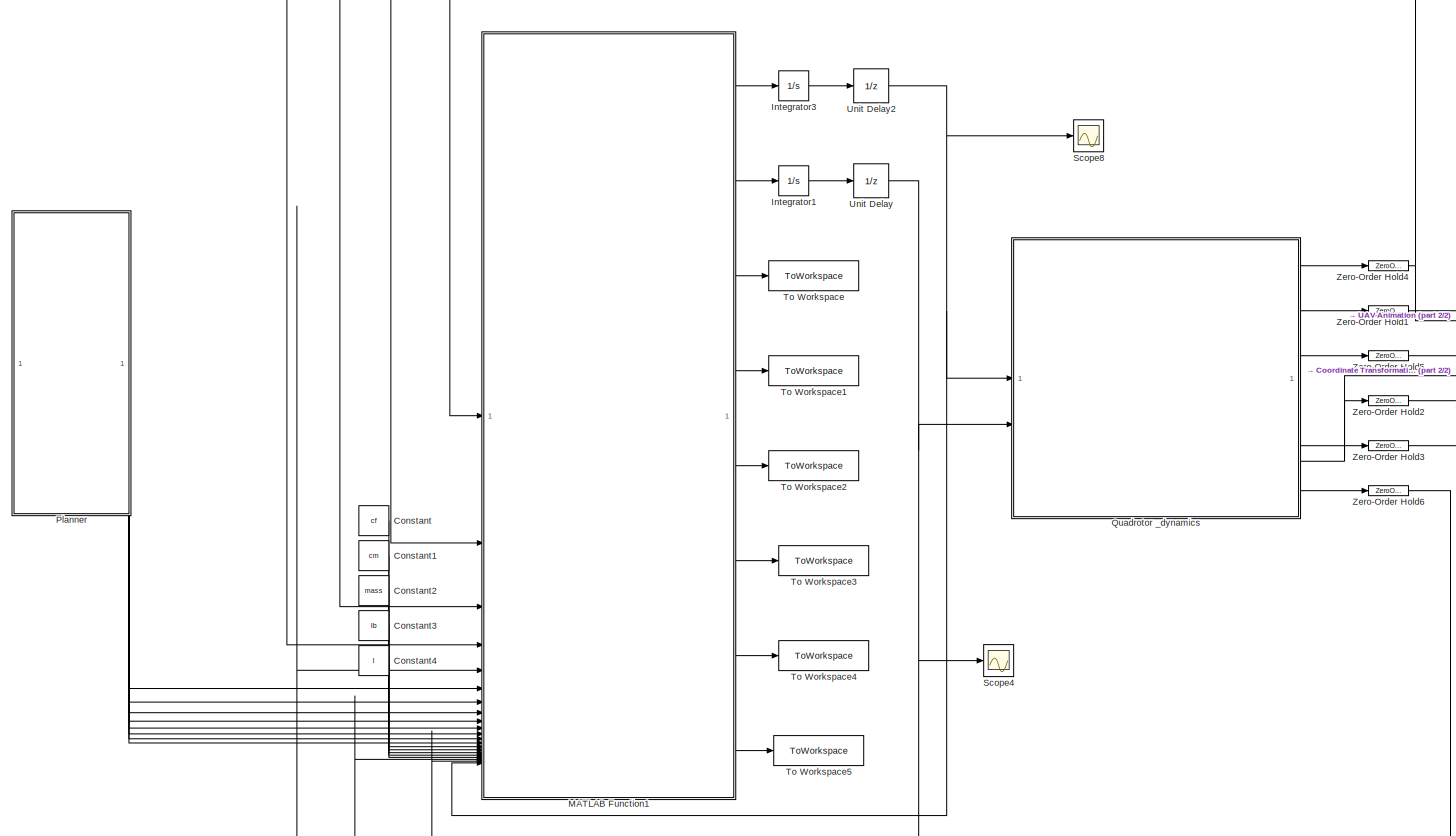
[diagram: root canvas - part 1/2, most of the canvas]
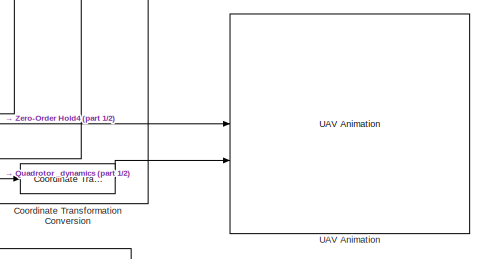
[diagram: root canvas - part 2/2, middle right region]
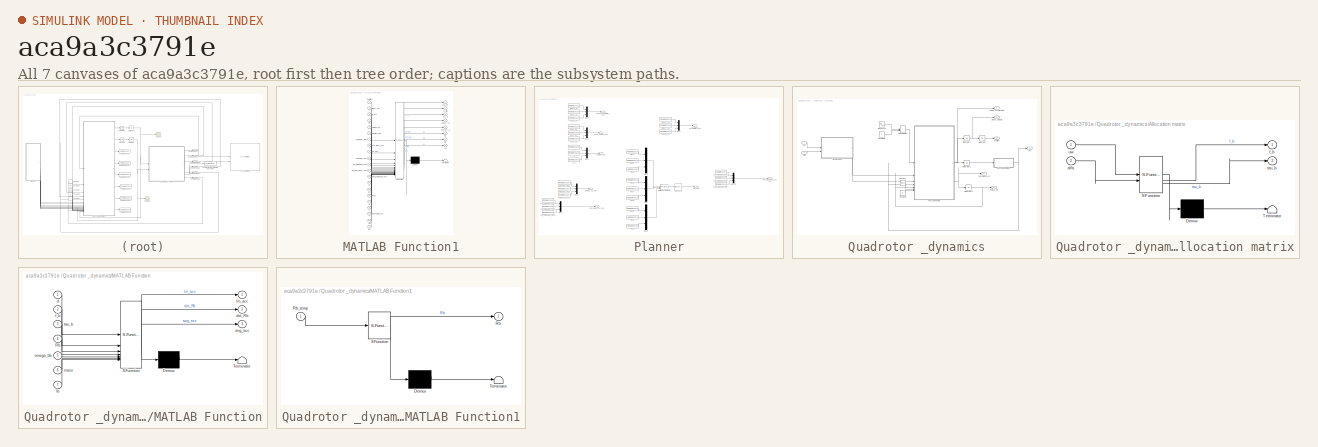
[diagram: thumbnail index - all 7 canvases of the model, root first then tree order]
MODEL slx_aca9a3c3791e
KIND model
CONFIG AbsTol = auto
CONFIG EnableMultiTasking = off
CONFIG FixedStep = auto
CONFIG InitFcn = addpath('TRAJECTORIES\');\nsquare_tilting\n%circular_tilting
CONFIG MaxStep = auto
CONFIG MinStep = auto
CONFIG RelTol = 1e-3
CONFIG SampleTimeConstraint = Unconstrained
CONFIG SolverName = VariableStepAuto
CONFIG StartFcn = %% Setup Video e Timer\nvideoFile = 'Holocopter_quad.avi';\n%videoFile = 'Holocopter_circ.avi';\nvideoObj = VideoWriter(videoFile);\nvideoObj.FrameRate = 30;\nopen(videoObj);\nassignin('base','videoObj',videoObj);\n \n \nt = timer('ExecutionMode','fixedSpacing','Period',0.05,'StartDelay',2,...\n          'TimerFcn',@(~,~) captureFrame(findall(0,'Type','figure','Name','UAV Animation'), videoObj));\nstart(t);\n...<+36ch>
CONFIG StartTime = 0.0
CONFIG StopFcn = % Default graphics settings\nset(0, 'DefaultTextInterpreter', 'latex')\nset(0, 'DefaultLegendInterpreter', 'latex')\nset(0, 'DefaultAxesTickLabelInterpreter', 'latex')\nlw = 2;\nplot_errors = figure('Renderer', 'painters', 'Position', [10 10 900 650]);    \nsubplot(3,1,1)\nplot(out.err_p.time, out.err_p.signals.values(1,:), 'k-', 'Linewidth', lw ,'Color', [0.2, 0.2, 0.2]);\nhold on\nplot(out.err_p.time, ou...<+4012ch>
CONFIG StopTime = tot_time
BLOCK [Constant] Constant
  Value = cf
BLOCK [Constant] Constant1
  Value = cm
BLOCK [Constant] Constant2
  Value = mass
BLOCK [Constant] Constant3
  Value = Ib
BLOCK [Constant] Constant4
  Value = l
BLOCK [Reference] Coordinate Transformation Conversion  REF=robotcorelib/Coordinate Transformation Conversion
  SourceBlock = robotcorelib/Coordinate Transformation Conversion
  SourceType = robotics.slcore.internal.block.CoordinateTransformationConversion
BLOCK [Integrator] Integrator1
  InitialCondition = [0.1 0.1 0.1 0.1]'
BLOCK [Integrator] Integrator3
  InitialCondition = 2e+05*ones(4,1)
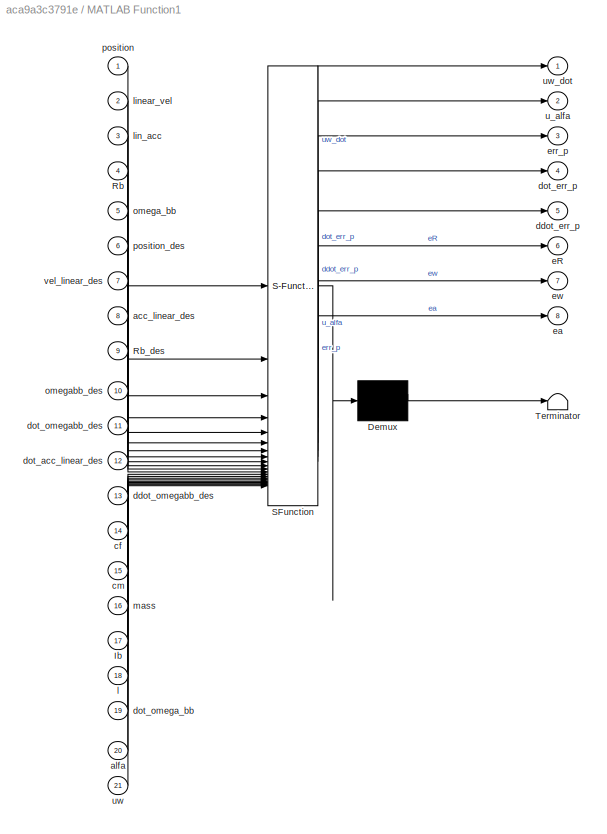
BLOCK [SubSystem] MATLAB Function1
  ErrorFcn = Stateflow.Translate.translate
  PermitHierarchicalResolution = ExplicitOnly
  SFBlockType = MATLAB Function
  TreatAsAtomicUnit = on
BLOCK [Demux] MATLAB Function1/ Demux 
  Outputs = 1
BLOCK [S-Function] MATLAB Function1/ SFunction 
  EnableBusSupport = on
  FunctionName = sf_sfun
  PortCounts = [21 9]
  SFcnIsStateOwnerBlock = off
  SFunctionDeploymentMode = off
  Tag = Stateflow S-Function 4
BLOCK [Terminator] MATLAB Function1/ Terminator 
BLOCK [Inport] MATLAB Function1/Ib
  Port = 17
BLOCK [Inport] MATLAB Function1/Rb
  Port = 4
BLOCK [Inport] MATLAB Function1/Rb_des
  Port = 9
BLOCK [Inport] MATLAB Function1/acc_linear_des
  Port = 8
BLOCK [Inport] MATLAB Function1/alfa
  Port = 20
BLOCK [Inport] MATLAB Function1/cf
  Port = 14
BLOCK [Inport] MATLAB Function1/cm
  Port = 15
BLOCK [Outport] MATLAB Function1/ddot_err_p
  Port = 5
BLOCK [Inport] MATLAB Function1/ddot_omegabb_des
  Port = 13
BLOCK [Inport] MATLAB Function1/dot_acc_linear_des
  Port = 12
BLOCK [Outport] MATLAB Function1/dot_err_p
  Port = 4
BLOCK [Inport] MATLAB Function1/dot_omega_bb
  Port = 19
BLOCK [Inport] MATLAB Function1/dot_omegabb_des
  Port = 11
BLOCK [Outport] MATLAB Function1/eR
  Port = 6
BLOCK [Outport] MATLAB Function1/ea
  Port = 8
BLOCK [Outport] MATLAB Function1/err_p
  Port = 3
BLOCK [Outport] MATLAB Function1/ew
  Port = 7
BLOCK [Inport] MATLAB Function1/l
  Port = 18
BLOCK [Inport] MATLAB Function1/lin_acc
  Port = 3
BLOCK [Inport] MATLAB Function1/linear_vel
  Port = 2
BLOCK [Inport] MATLAB Function1/mass
  Port = 16
BLOCK [Inport] MATLAB Function1/omega_bb
  Port = 5
BLOCK [Inport] MATLAB Function1/omegabb_des
  Port = 10
BLOCK [Inport] MATLAB Function1/position
BLOCK [Inport] MATLAB Function1/position_des
  Port = 6
BLOCK [Outport] MATLAB Function1/u_alfa
  Port = 2
BLOCK [Inport] MATLAB Function1/uw
  Port = 21
BLOCK [Outport] MATLAB Function1/uw_dot
BLOCK [Inport] MATLAB Function1/vel_linear_des
  Port = 7
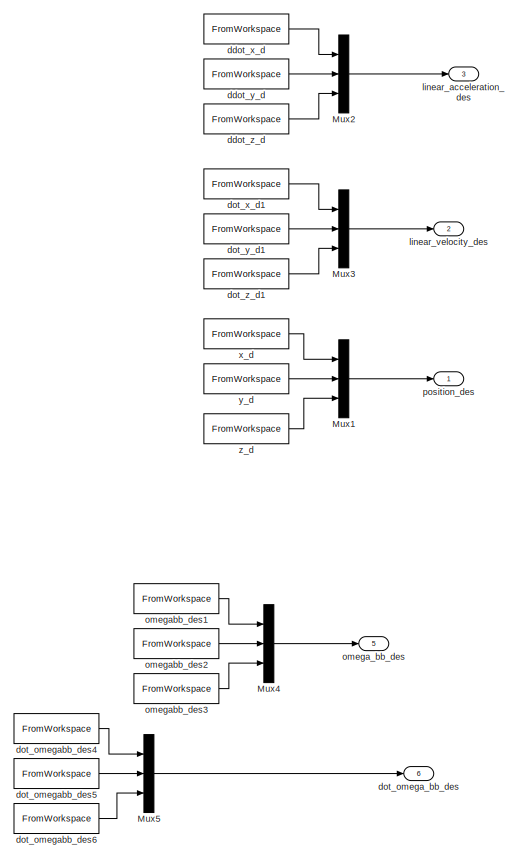
[diagram: Planner - part 1/2, left side, full height]
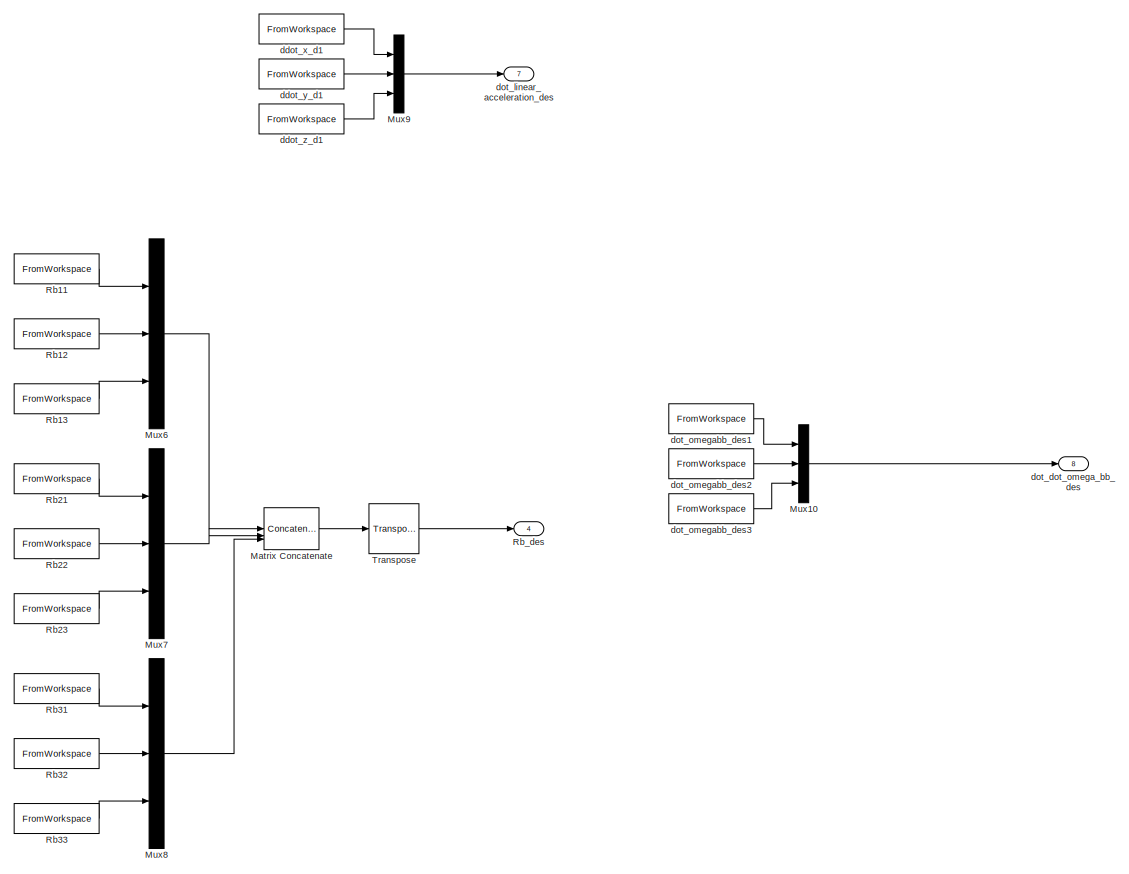
[diagram: Planner - part 2/2, right side, full height]
BLOCK [SubSystem] Planner
BLOCK [Concatenate] Planner/Matrix Concatenate
  ConcatenateDimension = 2
  Mode = Multidimensional array
  NumInputs = 3
BLOCK [Mux] Planner/Mux1
  DisplayOption = bar
  Inputs = 3
BLOCK [Mux] Planner/Mux10
  DisplayOption = bar
  Inputs = 3
BLOCK [Mux] Planner/Mux2
  DisplayOption = bar
  Inputs = 3
BLOCK [Mux] Planner/Mux3
  DisplayOption = bar
  Inputs = 3
BLOCK [Mux] Planner/Mux4
  DisplayOption = bar
  Inputs = 3
BLOCK [Mux] Planner/Mux5
  DisplayOption = bar
  Inputs = 3
BLOCK [Mux] Planner/Mux6
  DisplayOption = bar
  Inputs = 3
BLOCK [Mux] Planner/Mux7
  DisplayOption = bar
  Inputs = 3
BLOCK [Mux] Planner/Mux8
  DisplayOption = bar
  Inputs = 3
BLOCK [Mux] Planner/Mux9
  DisplayOption = bar
  Inputs = 3
BLOCK [FromWorkspace] Planner/Rb11
  SampleTime = Ts
  VariableName = [t' squeeze(Rbdes(1,1,:))]
BLOCK [FromWorkspace] Planner/Rb12
  SampleTime = Ts
  VariableName = [t' squeeze(Rbdes(1,2,:))]
BLOCK [FromWorkspace] Planner/Rb13
  SampleTime = Ts
  VariableName = [t' squeeze(Rbdes(1,3,:))]
BLOCK [FromWorkspace] Planner/Rb21
  SampleTime = Ts
  VariableName = [t' squeeze(Rbdes(2,1,:))]
BLOCK [FromWorkspace] Planner/Rb22
  SampleTime = Ts
  VariableName = [t' squeeze(Rbdes(2,2,:))]
BLOCK [FromWorkspace] Planner/Rb23
  SampleTime = Ts
  VariableName = [t' squeeze(Rbdes(2,3,:))]
BLOCK [FromWorkspace] Planner/Rb31
  SampleTime = Ts
  VariableName = [t' squeeze(Rbdes(3,1,:))]
BLOCK [FromWorkspace] Planner/Rb32
  SampleTime = Ts
  VariableName = [t' squeeze(Rbdes(3,2,:))]
BLOCK [FromWorkspace] Planner/Rb33
  SampleTime = Ts
  VariableName = [t' squeeze(Rbdes(3,3,:))]
BLOCK [Outport] Planner/Rb_des
  Port = 4
BLOCK [Reference] Planner/Transpose  REF=matrix_library/Transpose
  LibrarySourceBlock = simulink/Matrix\nOperations/Transpose
  SourceBlock = matrix_library/Transpose
  SourceType = Transpose
BLOCK [FromWorkspace] Planner/ddot_x_d
  SampleTime = Ts
  VariableName = [t' ddot_csi_d(1,:)']
BLOCK [FromWorkspace] Planner/ddot_x_d1
  SampleTime = Ts
  VariableName = [t' dddot_csi_d(1,:)']
BLOCK [FromWorkspace] Planner/ddot_y_d
  SampleTime = Ts
  VariableName = [t' ddot_csi_d(2,:)']
BLOCK [FromWorkspace] Planner/ddot_y_d1
  SampleTime = Ts
  VariableName = [t' dddot_csi_d(2,:)']
BLOCK [FromWorkspace] Planner/ddot_z_d
  SampleTime = Ts
  VariableName = [t' ddot_csi_d(3,:)']
BLOCK [FromWorkspace] Planner/ddot_z_d1
  SampleTime = Ts
  VariableName = [t' dddot_csi_d(3,:)']
BLOCK [Outport] Planner/dot_dot_omega_bb_des
  Port = 8
BLOCK [Outport] Planner/dot_linear_acceleration_des
  Port = 7
BLOCK [Outport] Planner/dot_omega_bb_des
  Port = 6
BLOCK [FromWorkspace] Planner/dot_omegabb_des1
  SampleTime = Ts
  VariableName = [t' dot_dot_omegabb_des(1,:)']
BLOCK [FromWorkspace] Planner/dot_omegabb_des2
  SampleTime = Ts
  VariableName = [t' dot_dot_omegabb_des(2,:)']
BLOCK [FromWorkspace] Planner/dot_omegabb_des3
  SampleTime = Ts
  VariableName = [t' dot_dot_omegabb_des(3,:)']
BLOCK [FromWorkspace] Planner/dot_omegabb_des4
  SampleTime = Ts
  VariableName = [t' dot_omegabb_des(1,:)']
BLOCK [FromWorkspace] Planner/dot_omegabb_des5
  SampleTime = Ts
  VariableName = [t' dot_omegabb_des(2,:)']
BLOCK [FromWorkspace] Planner/dot_omegabb_des6
  SampleTime = Ts
  VariableName = [t' dot_omegabb_des(3,:)']
BLOCK [FromWorkspace] Planner/dot_x_d1
  SampleTime = Ts
  VariableName = [t' dot_csi_d(1,:)']
BLOCK [FromWorkspace] Planner/dot_y_d1
  SampleTime = Ts
  VariableName = [t' dot_csi_d(2,:)']
BLOCK [FromWorkspace] Planner/dot_z_d1
  SampleTime = Ts
  VariableName = [t' dot_csi_d(3,:)']
BLOCK [Outport] Planner/linear_acceleration_des
  Port = 3
BLOCK [Outport] Planner/linear_velocity_des
  Port = 2
BLOCK [Outport] Planner/omega_bb_des
  Port = 5
BLOCK [FromWorkspace] Planner/omegabb_des1
  SampleTime = Ts
  VariableName = [t' omegabb_des(1,:)']
BLOCK [FromWorkspace] Planner/omegabb_des2
  SampleTime = Ts
  VariableName = [t' omegabb_des(2,:)']
BLOCK [FromWorkspace] Planner/omegabb_des3
  SampleTime = Ts
  VariableName = [t' omegabb_des(3,:)']
BLOCK [Outport] Planner/position_des
BLOCK [FromWorkspace] Planner/x_d
  SampleTime = Ts
  VariableName = [t' csi_d(1,:)']
BLOCK [FromWorkspace] Planner/y_d
  SampleTime = Ts
  VariableName = [t' csi_d(2,:)']
BLOCK [FromWorkspace] Planner/z_d
  SampleTime = Ts
  VariableName = [t' csi_d(3,:)']
BLOCK [SubSystem] Quadrotor _dynamics
BLOCK [SubSystem] Quadrotor _dynamics/Allocation matrix
  ErrorFcn = Stateflow.Translate.translate
  PermitHierarchicalResolution = ExplicitOnly
  SFBlockType = MATLAB Function
  TreatAsAtomicUnit = on
BLOCK [Demux] Quadrotor _dynamics/Allocation matrix/ Demux 
  Outputs = 1
BLOCK [S-Function] Quadrotor _dynamics/Allocation matrix/ SFunction 
  EnableBusSupport = on
  FunctionName = sf_sfun
  Parameters = cf,cm,l
  PortCounts = [2 3]
  SFcnIsStateOwnerBlock = off
  SFunctionDeploymentMode = off
  Tag = Stateflow S-Function 1
BLOCK [Terminator] Quadrotor _dynamics/Allocation matrix/ Terminator 
BLOCK [Inport] Quadrotor _dynamics/Allocation matrix/alfa
  Port = 2
BLOCK [Outport] Quadrotor _dynamics/Allocation matrix/f_b
BLOCK [Outport] Quadrotor _dynamics/Allocation matrix/tau_b
  Port = 2
BLOCK [Inport] Quadrotor _dynamics/Allocation matrix/uw
BLOCK [Constant] Quadrotor _dynamics/Constant
  Value = mass
BLOCK [Constant] Quadrotor _dynamics/Constant1
  Value = Ib
BLOCK [Constant] Quadrotor _dynamics/Constant2
  Value = 0
BLOCK [Integrator] Quadrotor _dynamics/Integrator
  InitialCondition = pos_0'
BLOCK [Integrator] Quadrotor _dynamics/Integrator1
  InitialCondition = lin_vel_0'
BLOCK [Integrator] Quadrotor _dynamics/Integrator2
  InitialCondition = [1 0 0; 0 1 0;0 0 1]
BLOCK [Integrator] Quadrotor _dynamics/Integrator3
  InitialCondition = w_bb_0'
BLOCK [Outport] Quadrotor _dynamics/Linear_acceleration
  Port = 3
BLOCK [Outport] Quadrotor _dynamics/Linear_velocity
  Port = 2
BLOCK [SubSystem] Quadrotor _dynamics/MATLAB Function
  ErrorFcn = Stateflow.Translate.translate
  PermitHierarchicalResolution = ExplicitOnly
  SFBlockType = MATLAB Function
  TreatAsAtomicUnit = on
BLOCK [Demux] Quadrotor _dynamics/MATLAB Function/ Demux 
  Outputs = 1
BLOCK [S-Function] Quadrotor _dynamics/MATLAB Function/ SFunction 
  EnableBusSupport = on
  FunctionName = sf_sfun
  PortCounts = [7 4]
  SFcnIsStateOwnerBlock = off
  SFunctionDeploymentMode = off
  Tag = Stateflow S-Function 3
BLOCK [Terminator] Quadrotor _dynamics/MATLAB Function/ Terminator 
BLOCK [Inport] Quadrotor _dynamics/MATLAB Function/Ib
  Port = 7
BLOCK [Inport] Quadrotor _dynamics/MATLAB Function/Rb
  Port = 4
BLOCK [Outport] Quadrotor _dynamics/MATLAB Function/ang_acc
  Port = 3
BLOCK [Inport] Quadrotor _dynamics/MATLAB Function/d
BLOCK [Outport] Quadrotor _dynamics/MATLAB Function/dot_Rb
  Port = 2
BLOCK [Inport] Quadrotor _dynamics/MATLAB Function/f_b
  Port = 2
BLOCK [Outport] Quadrotor _dynamics/MATLAB Function/lin_acc
BLOCK [Inport] Quadrotor _dynamics/MATLAB Function/mass
  Port = 6
BLOCK [Inport] Quadrotor _dynamics/MATLAB Function/omega_bb
  Port = 5
BLOCK [Inport] Quadrotor _dynamics/MATLAB Function/tau_b
  Port = 3
BLOCK [SubSystem] Quadrotor _dynamics/MATLAB Function1
  ErrorFcn = Stateflow.Translate.translate
  PermitHierarchicalResolution = ExplicitOnly
  SFBlockType = MATLAB Function
  TreatAsAtomicUnit = on
BLOCK [Demux] Quadrotor _dynamics/MATLAB Function1/ Demux 
  Outputs = 1
BLOCK [S-Function] Quadrotor _dynamics/MATLAB Function1/ SFunction 
  EnableBusSupport = on
  FunctionName = sf_sfun
  PortCounts = [1 2]
  SFcnIsStateOwnerBlock = off
  SFunctionDeploymentMode = off
  Tag = Stateflow S-Function 5
BLOCK [Terminator] Quadrotor _dynamics/MATLAB Function1/ Terminator 
BLOCK [Outport] Quadrotor _dynamics/MATLAB Function1/Rb
BLOCK [Inport] Quadrotor _dynamics/MATLAB Function1/Rb_temp
BLOCK [ManualSwitch] Quadrotor _dynamics/Manual Switch
  CurrentSetting = 0
BLOCK [Outport] Quadrotor _dynamics/Position
BLOCK [Outport] Quadrotor _dynamics/Rb
  Port = 4
BLOCK [Sin] Quadrotor _dynamics/Sine Wave
  Frequency = 0.2
  SampleTime = 0
BLOCK [Inport] Quadrotor _dynamics/alfa
  Port = 2
BLOCK [Outport] Quadrotor _dynamics/dot_omega_bb
  Port = 6
BLOCK [Outport] Quadrotor _dynamics/omega_bb
  Port = 5
BLOCK [Inport] Quadrotor _dynamics/uw
BLOCK [Scope] Scope4
  Floating = off
  NumInputPorts = 1
  ScopeSpecificationString = Simulink.scopes.TimeScopeBlockCfg('CurrentConfiguration', extmgr.ConfigurationSet(extmgr.Configuration('Core','General UI',true),extmgr.Configuration('Core','Source UI',true),extmgr.Configuration('Sources','WiredSimulink',true,'DataLoggingVariableName','ScopeData1'),extmgr.Configuration('Visuals','Time Domain',true,'SerializedDisplays',{struct('MinYLimReal','-0.71877','MaxYLimReal','0.74438','YLab...<+1560ch>
BLOCK [Scope] Scope8
  Floating = off
  NumInputPorts = 1
  ScopeSpecificationString = Simulink.scopes.TimeScopeBlockCfg('CurrentConfiguration', extmgr.ConfigurationSet(extmgr.Configuration('Core','General UI',true),extmgr.Configuration('Core','Source UI',true),extmgr.Configuration('Sources','WiredSimulink',true,'DataLoggingVariableName','ScopeData4'),extmgr.Configuration('Visuals','Time Domain',true,'SerializedDisplays',{struct('MinYLimReal','170388.12442','MaxYLimReal','229417.539...<+1589ch>
BLOCK [ToWorkspace] To Workspace
  FixptAsFi = on
  MaxDataPoints = inf
  SampleTime = -1
  SaveFormat = Structure With Time
  VariableName = err_p
BLOCK [ToWorkspace] To Workspace1
  FixptAsFi = on
  MaxDataPoints = inf
  SampleTime = -1
  SaveFormat = Structure With Time
  VariableName = dot_err_p
BLOCK [ToWorkspace] To Workspace2
  FixptAsFi = on
  MaxDataPoints = inf
  SampleTime = -1
  SaveFormat = Structure With Time
  VariableName = ddot_err_p
BLOCK [ToWorkspace] To Workspace3
  FixptAsFi = on
  MaxDataPoints = inf
  SampleTime = -1
  SaveFormat = Structure With Time
  VariableName = eR
BLOCK [ToWorkspace] To Workspace4
  FixptAsFi = on
  MaxDataPoints = inf
  SampleTime = -1
  SaveFormat = Structure With Time
  VariableName = ew
BLOCK [ToWorkspace] To Workspace5
  FixptAsFi = on
  MaxDataPoints = inf
  SampleTime = -1
  SaveFormat = Structure With Time
  VariableName = ea
BLOCK [Reference] UAV Animation  REF=uavutilslib/UAV Animation
  SourceBlock = uavutilslib/UAV Animation
  SourceType = uav.sluav.internal.system.UAVAnimation
BLOCK [UnitDelay] Unit Delay
  HasFrameUpgradeWarning = on
  InitialCondition = [0.1 0.1 0.1 0.1]'
  SampleTime = -1
BLOCK [UnitDelay] Unit Delay2
  HasFrameUpgradeWarning = on
  InitialCondition = 2e+05*ones(4,1)
  SampleTime = -1
BLOCK [ZeroOrderHold] Zero-Order Hold1
  SampleTime = Ts
BLOCK [ZeroOrderHold] Zero-Order Hold2
  SampleTime = Ts
BLOCK [ZeroOrderHold] Zero-Order Hold3
  SampleTime = Ts
BLOCK [ZeroOrderHold] Zero-Order Hold4
  SampleTime = Ts
BLOCK [ZeroOrderHold] Zero-Order Hold5
  SampleTime = Ts
BLOCK [ZeroOrderHold] Zero-Order Hold6
  SampleTime = Ts
LINE Constant1:1 -> MATLAB Function1:15
LINE Constant2:1 -> MATLAB Function1:16
LINE Constant3:1 -> MATLAB Function1:17
LINE Constant4:1 -> MATLAB Function1:18
LINE Constant:1 -> MATLAB Function1:14
LINE Coordinate Transformation Conversion:1 -> UAV Animation:2
LINE Integrator1:1 -> Unit Delay:1
LINE Integrator3:1 -> Unit Delay2:1
LINE MATLAB Function1:1 -> Integrator3:1
LINE MATLAB Function1:2 -> Integrator1:1
LINE MATLAB Function1:3 -> To Workspace:1
LINE MATLAB Function1:4 -> To Workspace1:1
LINE MATLAB Function1:5 -> To Workspace2:1
LINE MATLAB Function1:6 -> To Workspace3:1
LINE MATLAB Function1:7 -> To Workspace4:1
LINE MATLAB Function1:8 -> To Workspace5:1
LINE Planner/Matrix Concatenate:1 -> Planner/Transpose:1
LINE Planner/Mux10:1 -> Planner/dot_dot_omega_bb_des:1
LINE Planner/Mux1:1 -> Planner/position_des:1
LINE Planner/Mux2:1 -> Planner/linear_acceleration_des:1
LINE Planner/Mux3:1 -> Planner/linear_velocity_des:1
LINE Planner/Mux4:1 -> Planner/omega_bb_des:1
LINE Planner/Mux5:1 -> Planner/dot_omega_bb_des:1
LINE Planner/Mux6:1 -> Planner/Matrix Concatenate:1
LINE Planner/Mux7:1 -> Planner/Matrix Concatenate:2
LINE Planner/Mux8:1 -> Planner/Matrix Concatenate:3
LINE Planner/Mux9:1 -> Planner/dot_linear_acceleration_des:1
LINE Planner/Rb11:1 -> Planner/Mux6:1
LINE Planner/Rb12:1 -> Planner/Mux6:2
LINE Planner/Rb13:1 -> Planner/Mux6:3
LINE Planner/Rb21:1 -> Planner/Mux7:1
LINE Planner/Rb22:1 -> Planner/Mux7:2
LINE Planner/Rb23:1 -> Planner/Mux7:3
LINE Planner/Rb31:1 -> Planner/Mux8:1
LINE Planner/Rb32:1 -> Planner/Mux8:2
LINE Planner/Rb33:1 -> Planner/Mux8:3
LINE Planner/Transpose:1 -> Planner/Rb_des:1
LINE Planner/ddot_x_d1:1 -> Planner/Mux9:1
LINE Planner/ddot_x_d:1 -> Planner/Mux2:1
LINE Planner/ddot_y_d1:1 -> Planner/Mux9:2
LINE Planner/ddot_y_d:1 -> Planner/Mux2:2
LINE Planner/ddot_z_d1:1 -> Planner/Mux9:3
LINE Planner/ddot_z_d:1 -> Planner/Mux2:3
LINE Planner/dot_omegabb_des1:1 -> Planner/Mux10:1
LINE Planner/dot_omegabb_des2:1 -> Planner/Mux10:2
LINE Planner/dot_omegabb_des3:1 -> Planner/Mux10:3
LINE Planner/dot_omegabb_des4:1 -> Planner/Mux5:1
LINE Planner/dot_omegabb_des5:1 -> Planner/Mux5:2
LINE Planner/dot_omegabb_des6:1 -> Planner/Mux5:3
LINE Planner/dot_x_d1:1 -> Planner/Mux3:1
LINE Planner/dot_y_d1:1 -> Planner/Mux3:2
LINE Planner/dot_z_d1:1 -> Planner/Mux3:3
LINE Planner/omegabb_des1:1 -> Planner/Mux4:1
LINE Planner/omegabb_des2:1 -> Planner/Mux4:2
LINE Planner/omegabb_des3:1 -> Planner/Mux4:3
LINE Planner/x_d:1 -> Planner/Mux1:1
LINE Planner/y_d:1 -> Planner/Mux1:2
LINE Planner/z_d:1 -> Planner/Mux1:3
LINE Planner:1 -> MATLAB Function1:6
LINE Planner:2 -> MATLAB Function1:7
LINE Planner:3 -> MATLAB Function1:8
LINE Planner:4 -> MATLAB Function1:9
LINE Planner:5 -> MATLAB Function1:10
LINE Planner:6 -> MATLAB Function1:11
LINE Planner:7 -> MATLAB Function1:12
LINE Planner:8 -> MATLAB Function1:13
LINE Quadrotor _dynamics/Allocation matrix:1 -> Quadrotor _dynamics/MATLAB Function:2
LINE Quadrotor _dynamics/Allocation matrix:2 -> Quadrotor _dynamics/MATLAB Function:3
LINE Quadrotor _dynamics/Constant1:1 -> Quadrotor _dynamics/MATLAB Function:7
LINE Quadrotor _dynamics/Constant2:1 -> Quadrotor _dynamics/Manual Switch:2
LINE Quadrotor _dynamics/Constant:1 -> Quadrotor _dynamics/MATLAB Function:6
NET Quadrotor _dynamics/Integrator1:1 -> Quadrotor _dynamics/Integrator:1, Quadrotor _dynamics/Linear_velocity:1
LINE Quadrotor _dynamics/Integrator2:1 -> Quadrotor _dynamics/MATLAB Function1:1
NET Quadrotor _dynamics/Integrator3:1 -> Quadrotor _dynamics/MATLAB Function:5, Quadrotor _dynamics/omega_bb:1
LINE Quadrotor _dynamics/Integrator:1 -> Quadrotor _dynamics/Position:1
NET Quadrotor _dynamics/MATLAB Function1:1 -> Quadrotor _dynamics/MATLAB Function:4, Quadrotor _dynamics/Rb:1
NET Quadrotor _dynamics/MATLAB Function:1 -> Quadrotor _dynamics/Integrator1:1, Quadrotor _dynamics/Linear_acceleration:1
LINE Quadrotor _dynamics/MATLAB Function:2 -> Quadrotor _dynamics/Integrator2:1
NET Quadrotor _dynamics/MATLAB Function:3 -> Quadrotor _dynamics/Integrator3:1, Quadrotor _dynamics/dot_omega_bb:1
LINE Quadrotor _dynamics/Manual Switch:1 -> Quadrotor _dynamics/MATLAB Function:1
LINE Quadrotor _dynamics/Sine Wave:1 -> Quadrotor _dynamics/Manual Switch:1
LINE Quadrotor _dynamics/alfa:1 -> Quadrotor _dynamics/Allocation matrix:2
LINE Quadrotor _dynamics/uw:1 -> Quadrotor _dynamics/Allocation matrix:1
LINE Quadrotor _dynamics:1 -> Zero-Order Hold4:1
LINE Quadrotor _dynamics:2 -> Zero-Order Hold1:1
LINE Quadrotor _dynamics:3 -> Zero-Order Hold5:1
NET Quadrotor _dynamics:4 -> Coordinate Transformation Conversion:1, Zero-Order Hold2:1
LINE Quadrotor _dynamics:5 -> Zero-Order Hold3:1
LINE Quadrotor _dynamics:6 -> Zero-Order Hold6:1
NET Unit Delay2:1 -> MATLAB Function1:21, Quadrotor _dynamics:1, Scope8:1
NET Unit Delay:1 -> MATLAB Function1:20, Quadrotor _dynamics:2, Scope4:1
LINE Zero-Order Hold1:1 -> MATLAB Function1:2
LINE Zero-Order Hold2:1 -> MATLAB Function1:4
LINE Zero-Order Hold3:1 -> MATLAB Function1:5
NET Zero-Order Hold4:1 -> MATLAB Function1:1, UAV Animation:1
LINE Zero-Order Hold5:1 -> MATLAB Function1:3
LINE Zero-Order Hold6:1 -> MATLAB Function1:19
note: NET lines group one-source signal fan-out (src -> all destinations, sorted); 1:1 wires keep LINE
CHART Quadrotor _dynamics/MATLAB Function1 states=1 transitions=1
  STATE_LABEL 'eML_blk_kernel()'
  STATE_LABEL "SCRIPT:\nfunction Rb = fcn(Rb_temp)\n    [U,S,V] = svd(Rb_temp);\n    sigma = det(U*V');\n    S_ = diag([1 1 sigma]);\n\n    Rb = U*S_*V';\nend\n"
CHART Quadrotor _dynamics/Allocation matrix states=1 transitions=1
  STATE_LABEL 'eML_blk_kernel()'
  STATE_LABEL 'SCRIPT:\nfunction [f_b,tau_b] = allocation_matrix(uw,alfa,cm, cf, l)\n\nalfa1 = alfa(1);\nalfa2 = alfa(2);\nalfa3 = alfa(3);\nalfa4 = alfa(4);\n\n\n\nGq = [0 -cf*sin(alfa2) 0 cf*sin(alfa4);\n      cf*sin(alfa1) 0 -cf*sin(alfa3) 0;\n      -cf*cos(alfa1) -cf*cos(alfa2) -cf*cos(alfa3) -cf*cos(alfa4);\n      0 -l*cf*cos(alfa2)-cm*sin(alfa2) 0 l*cf*cos(alfa4)+cm*sin(alfa4);\n      l*cf*cos(alfa1)+cm*sin(alfa1) 0 -l*...<+214ch>'
CHART Quadrotor _dynamics/MATLAB Function states=1 transitions=1
  STATE_LABEL 'eML_blk_kernel()'
  STATE_LABEL "SCRIPT:\nfunction [lin_acc, dot_Rb, ang_acc] = dynamics(d,f_b,tau_b,Rb,omega_bb,mass, Ib)\n\nlin_acc = 9.81*[0 0 1]'+(1/mass)*Rb*f_b + d*ones(3,1);\ndot_Rb = Rb*skew(omega_bb);\nang_acc = inv(Ib)*(-skew(omega_bb)*Ib*omega_bb + tau_b);\n\n\nend\n\nfunction S = skew(v)\nif(numel(v)~= 1)\nS= [0 -v(3) v(2); \n    v(3) 0 -v(1);\n    -v(2) v(1) 0];\nelse\nS= zeros(3);\nend\nend\n"
CHART MATLAB Function1 states=1 transitions=1
  STATE_LABEL 'eML_blk_kernel()'
  STATE_LABEL 'SCRIPT:\nfunction [uw_dot, u_alfa, err_p, dot_err_p, ddot_err_p, eR, ew, ea] = compute_control_input(position, linear_vel, lin_acc, Rb, omega_bb, position_des, vel_linear_des, acc_linear_des, Rb_des, omegabb_des, dot_omegabb_des, ...\n   dot_acc_linear_des, ddot_omegabb_des, cf, cm, mass, Ib, l,   dot_omega_bb,alfa,uw)\n\n    %Compute errors\n    err_p = position - position_des;\n    dot_err_p = linear_...<+2477ch>'
CHART  states=0 transitions=0
CHART  states=0 transitions=0
CHART  states=0 transitions=0
CHART  states=0 transitions=0
